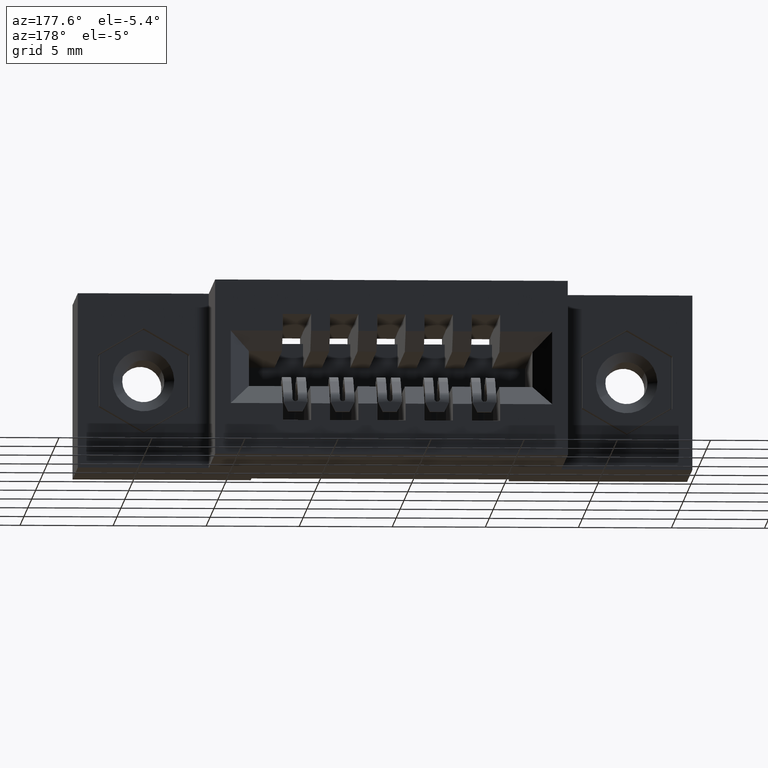
[diagram: clean part render]
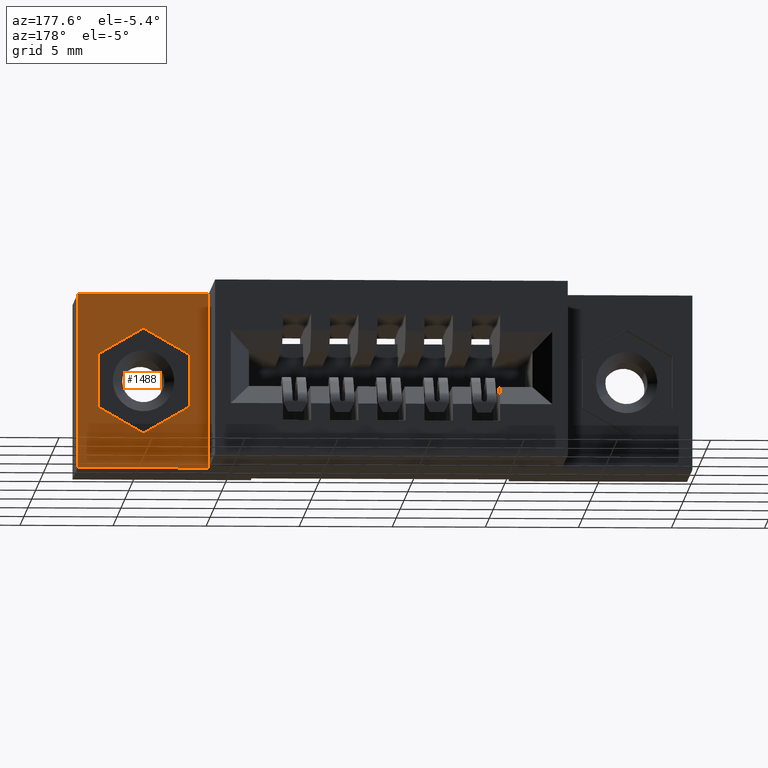
[diagram: same view with one face highlighted and labeled with its STEP entity id]
A machine part, auxiliary view. The second image highlights one B-rep face of the part: STEP entity #1488.
In plain terms, the highlighted planar face has unit normal (0, 1, 0).
Its self-contained STEP definition (entity closure, byte-faithful):
#88 = DIRECTION ( 'NONE',  ( -0.0000000000000000000, -0.0000000000000000000, -1.000000000000000000 ) ) ;
#100 = DIRECTION ( 'NONE',  ( -0.0000000000000000000, -0.0000000000000000000, 1.000000000000000000 ) ) ;
#168 = VECTOR ( 'NONE', #1860, 39.37007874015749600 ) ;
#365 = EDGE_CURVE ( 'NONE', #2529, #1365, #8123, .T. ) ;
#550 = CARTESIAN_POINT ( 'NONE',  ( 1.064499999999999600, 0.2699999999999999600, -0.2407143009767989900 ) ) ;
#721 = EDGE_CURVE ( 'NONE', #7582, #5988, #978, .T. ) ;
#978 = LINE ( 'NONE', #4985, #2661 ) ;
#1142 = VECTOR ( 'NONE', #4045, 39.37007874015748100 ) ;
#1264 = VECTOR ( 'NONE', #1454, 39.37007874015749600 ) ;
#1365 = VERTEX_POINT ( 'NONE', #4571 ) ;
#1374 = VECTOR ( 'NONE', #4491, 39.37007874015748100 ) ;
#1424 = CARTESIAN_POINT ( 'NONE',  ( 1.161000000000000000, 0.2699999999999999600, -0.2964286019535978800 ) ) ;
#1433 = CARTESIAN_POINT ( 'NONE',  ( 1.161000000000000000, 0.2699999999999999600, -0.07357139804640242000 ) ) ;
#1438 = CARTESIAN_POINT ( 'NONE',  ( 1.257499999999999800, 0.2699999999999999600, -0.2407143009767989900 ) ) ;
#1454 = DIRECTION ( 'NONE',  ( -0.8660254037844384900, -0.0000000000000000000, -0.5000000000000002200 ) ) ;
#1488 = ADVANCED_FACE ( 'NONE', ( #6713, #3161 ), #7907, .T. ) ;
#1641 = CARTESIAN_POINT ( 'NONE',  ( 1.257499999999999800, 0.2699999999999999600, -0.2407143009767989900 ) ) ;
#1860 = DIRECTION ( 'NONE',  ( 0.8660254037844384900, -0.0000000000000000000, -0.5000000000000002200 ) ) ;
#1960 = ORIENTED_EDGE ( 'NONE', *, *, #7258, .T. ) ;
#2095 = CARTESIAN_POINT ( 'NONE',  ( 1.022999999999999500, 0.2699999999999999600, -0.3699999999999991100 ) ) ;
#2211 = LINE ( 'NONE', #5175, #168 ) ;
#2220 = ORIENTED_EDGE ( 'NONE', *, *, #365, .T. ) ;
#2221 = CARTESIAN_POINT ( 'NONE',  ( 1.161000000000000000, 0.2699999999999999600, -0.07357139804640242000 ) ) ;
#2529 = VERTEX_POINT ( 'NONE', #5725 ) ;
#2586 = ORIENTED_EDGE ( 'NONE', *, *, #3966, .F. ) ;
#2591 = VERTEX_POINT ( 'NONE', #1438 ) ;
#2625 = CARTESIAN_POINT ( 'NONE',  ( 1.257499999999999800, 0.2699999999999999600, -0.1292856990232012800 ) ) ;
#2661 = VECTOR ( 'NONE', #6890, 39.37007874015748100 ) ;
#2843 = DIRECTION ( 'NONE',  ( 0.8660254037844398200, -0.0000000000000000000, 0.4999999999999978400 ) ) ;
#2950 = CARTESIAN_POINT ( 'NONE',  ( 1.299999999999999800, 0.2699999999999999600, 0.0000000000000000000 ) ) ;
#3036 = VERTEX_POINT ( 'NONE', #4005 ) ;
#3071 = ORIENTED_EDGE ( 'NONE', *, *, #8200, .T. ) ;
#3161 = FACE_OUTER_BOUND ( 'NONE', #5133, .T. ) ;
#3229 = LINE ( 'NONE', #7128, #1374 ) ;
#3312 = LINE ( 'NONE', #1641, #4891 ) ;
#3330 = LINE ( 'NONE', #1424, #1264 ) ;
#3468 = ORIENTED_EDGE ( 'NONE', *, *, #721, .T. ) ;
#3492 = EDGE_CURVE ( 'NONE', #2591, #3036, #3330, .T. ) ;
#3533 = VERTEX_POINT ( 'NONE', #2221 ) ;
#3758 = CARTESIAN_POINT ( 'NONE',  ( 1.064499999999999600, 0.2699999999999999600, -0.1292856990232012800 ) ) ;
#3966 = EDGE_CURVE ( 'NONE', #3533, #5530, #2211, .T. ) ;
#4005 = CARTESIAN_POINT ( 'NONE',  ( 1.161000000000000000, 0.2699999999999999600, -0.2964286019535978800 ) ) ;
#4045 = DIRECTION ( 'NONE',  ( -0.8660254037844397100, -0.0000000000000000000, 0.4999999999999981700 ) ) ;
#4257 = DIRECTION ( 'NONE',  ( 0.0000000000000000000, 0.0000000000000000000, 1.000000000000000000 ) ) ;
#4479 = ORIENTED_EDGE ( 'NONE', *, *, #6835, .F. ) ;
#4481 = VECTOR ( 'NONE', #100, 39.37007874015748100 ) ;
#4491 = DIRECTION ( 'NONE',  ( -0.0000000000000000000, -0.0000000000000000000, -1.000000000000000000 ) ) ;
#4571 = CARTESIAN_POINT ( 'NONE',  ( 1.022999999999999500, 0.2699999999999999600, -0.3699999999999991100 ) ) ;
#4891 = VECTOR ( 'NONE', #88, 39.37007874015748100 ) ;
#4985 = CARTESIAN_POINT ( 'NONE',  ( 1.299999999999999800, 0.2699999999999999600, 0.0000000000000000000 ) ) ;
#5133 = EDGE_LOOP ( 'NONE', ( #2220, #1960, #3468, #3071 ) ) ;
#5175 = CARTESIAN_POINT ( 'NONE',  ( 1.257499999999999800, 0.2699999999999999600, -0.1292856990232012800 ) ) ;
#5327 = ORIENTED_EDGE ( 'NONE', *, *, #7365, .F. ) ;
#5368 = VERTEX_POINT ( 'NONE', #3758 ) ;
#5424 = AXIS2_PLACEMENT_3D ( 'NONE', #2095, #6726, #7115 ) ;
#5472 = ORIENTED_EDGE ( 'NONE', *, *, #5663, .F. ) ;
#5530 = VERTEX_POINT ( 'NONE', #2625 ) ;
#5663 = EDGE_CURVE ( 'NONE', #3036, #6591, #6359, .T. ) ;
#5711 = CARTESIAN_POINT ( 'NONE',  ( 1.299999999999999800, 0.2699999999999999600, -0.3700000000000000000 ) ) ;
#5721 = VECTOR ( 'NONE', #4257, 39.37007874015748100 ) ;
#5725 = CARTESIAN_POINT ( 'NONE',  ( 1.299999999999999800, 0.2699999999999999600, -0.3700000000000000000 ) ) ;
#5988 = VERTEX_POINT ( 'NONE', #2950 ) ;
#6253 = LINE ( 'NONE', #7632, #4481 ) ;
#6352 = LINE ( 'NONE', #1433, #8138 ) ;
#6353 = EDGE_LOOP ( 'NONE', ( #4479, #5472, #8689, #5327, #2586, #7565 ) ) ;
#6359 = LINE ( 'NONE', #8057, #1142 ) ;
#6502 = DIRECTION ( 'NONE',  ( -1.000000000000000000, 0.0000000000000000000, 3.205236815671062800E-015 ) ) ;
#6591 = VERTEX_POINT ( 'NONE', #550 ) ;
#6624 = CARTESIAN_POINT ( 'NONE',  ( 1.022999999999999500, 0.2699999999999999600, -0.3699999999999991100 ) ) ;
#6713 = FACE_BOUND ( 'NONE', #6353, .T. ) ;
#6726 = DIRECTION ( 'NONE',  ( 0.0000000000000000000, 1.000000000000000000, -0.0000000000000000000 ) ) ;
#6835 = EDGE_CURVE ( 'NONE', #6591, #5368, #6253, .T. ) ;
#6890 = DIRECTION ( 'NONE',  ( 1.000000000000000000, -0.0000000000000000000, 3.910469652873041500E-016 ) ) ;
#7115 = DIRECTION ( 'NONE',  ( 0.0000000000000000000, 0.0000000000000000000, 1.000000000000000000 ) ) ;
#7128 = CARTESIAN_POINT ( 'NONE',  ( 1.299999999999999800, 0.2699999999999999600, -0.3700000000000000000 ) ) ;
#7164 = EDGE_CURVE ( 'NONE', #5368, #3533, #6352, .T. ) ;
#7191 = CARTESIAN_POINT ( 'NONE',  ( 1.022999999999999500, 0.2699999999999999600, -1.083200093845833700E-016 ) ) ;
#7258 = EDGE_CURVE ( 'NONE', #1365, #7582, #7678, .T. ) ;
#7365 = EDGE_CURVE ( 'NONE', #5530, #2591, #3312, .T. ) ;
#7565 = ORIENTED_EDGE ( 'NONE', *, *, #7164, .F. ) ;
#7582 = VERTEX_POINT ( 'NONE', #7191 ) ;
#7632 = CARTESIAN_POINT ( 'NONE',  ( 1.064499999999999600, 0.2699999999999999600, -0.1292856990232012500 ) ) ;
#7666 = VECTOR ( 'NONE', #6502, 39.37007874015748100 ) ;
#7678 = LINE ( 'NONE', #6624, #5721 ) ;
#7907 = PLANE ( 'NONE',  #5424 ) ;
#8057 = CARTESIAN_POINT ( 'NONE',  ( 1.064499999999999600, 0.2699999999999999600, -0.2407143009767989900 ) ) ;
#8123 = LINE ( 'NONE', #5711, #7666 ) ;
#8138 = VECTOR ( 'NONE', #2843, 39.37007874015748100 ) ;
#8200 = EDGE_CURVE ( 'NONE', #5988, #2529, #3229, .T. ) ;
#8689 = ORIENTED_EDGE ( 'NONE', *, *, #3492, .F. ) ;